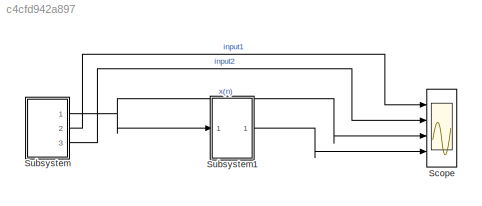
MODEL slx_c4cfd942a897
KIND model
CONFIG AbsTol = auto
CONFIG EnableMultiTasking = off
CONFIG FixedStep = auto
CONFIG MaxStep = auto
CONFIG MinStep = auto
CONFIG RelTol = 1e-3
CONFIG SampleTimeConstraint = Unconstrained
CONFIG SolverName = VariableStepAuto
CONFIG StartTime = 0.0
CONFIG StopTime = 10.0
BLOCK [Scope] Scope
  Floating = off
  NumInputPorts = 4
  Ports = [4]
  ScopeSpecificationString = Simulink.scopes.TimeScopeBlockCfg('CurrentConfiguration', extmgr.ConfigurationSet(extmgr.Configuration('Core','General UI',true),extmgr.Configuration('Core','Source UI',true),extmgr.Configuration('Sources','WiredSimulink',true),extmgr.Configuration('Visuals','Time Domain',true,'SerializedDisplays',{struct('MinYLimReal','-2.97713','MaxYLimReal','3.13522','YLabelReal','','MinYLimMag','0.00000','MaxY...<+3478ch>
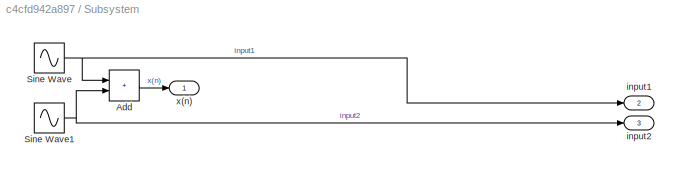
BLOCK [SubSystem] Subsystem
  Ports = [0, 3]
  RequestExecContextInheritance = off
BLOCK [Sum] Subsystem/Add
  IconShape = rectangular
  Ports = [2, 1]
BLOCK [Sin] Subsystem/Sine Wave
  Ports = [0, 1]
  SampleTime = 0
BLOCK [Sin] Subsystem/Sine Wave1
  Frequency = 50
  Ports = [0, 1]
  SampleTime = 0
BLOCK [Outport] Subsystem/input1
  Port = 2
BLOCK [Outport] Subsystem/input2
  Port = 3
BLOCK [Outport] Subsystem/x(n)
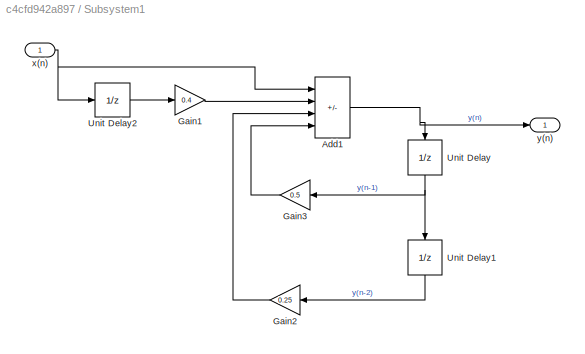
BLOCK [SubSystem] Subsystem1
  Ports = [1, 1]
  RequestExecContextInheritance = off
BLOCK [Sum] Subsystem1/Add1
  IconShape = rectangular
  Inputs = ++-+
  Ports = [4, 1]
BLOCK [Gain] Subsystem1/Gain1
  Gain = 0.4
BLOCK [Gain] Subsystem1/Gain2
  Gain = 0.25
  NameLocation = top
BLOCK [Gain] Subsystem1/Gain3
  Gain = 0.5
  NameLocation = top
BLOCK [UnitDelay] Subsystem1/Unit Delay
  HasFrameUpgradeWarning = on
  NameLocation = left
  SampleTime = -1
BLOCK [UnitDelay] Subsystem1/Unit Delay1
  HasFrameUpgradeWarning = on
  NameLocation = left
  SampleTime = -1
BLOCK [UnitDelay] Subsystem1/Unit Delay2
  HasFrameUpgradeWarning = on
  SampleTime = -1
BLOCK [Inport] Subsystem1/x(n)
BLOCK [Outport] Subsystem1/y(n)
LINE Subsystem/Add:1 -> Subsystem/x(n):1
NET Subsystem/Sine Wave1:1 -> Subsystem/Add:2, Subsystem/input2:1
NET Subsystem/Sine Wave:1 -> Subsystem/Add:1, Subsystem/input1:1
NET Subsystem1/Add1:1 -> Subsystem1/Unit Delay:1, Subsystem1/y(n):1
LINE Subsystem1/Gain1:1 -> Subsystem1/Add1:2
LINE Subsystem1/Gain2:1 -> Subsystem1/Add1:3
LINE Subsystem1/Gain3:1 -> Subsystem1/Add1:4
LINE Subsystem1/Unit Delay1:1 -> Subsystem1/Gain2:1
LINE Subsystem1/Unit Delay2:1 -> Subsystem1/Gain1:1
NET Subsystem1/Unit Delay:1 -> Subsystem1/Gain3:1, Subsystem1/Unit Delay1:1
NET Subsystem1/x(n):1 -> Subsystem1/Add1:1, Subsystem1/Unit Delay2:1
LINE Subsystem1:1 -> Scope:4
NET Subsystem:1 -> Scope:3, Subsystem1:1
LINE Subsystem:2 -> Scope:1
LINE Subsystem:3 -> Scope:2
note: NET lines group one-source signal fan-out (src -> all destinations, sorted); 1:1 wires keep LINE
